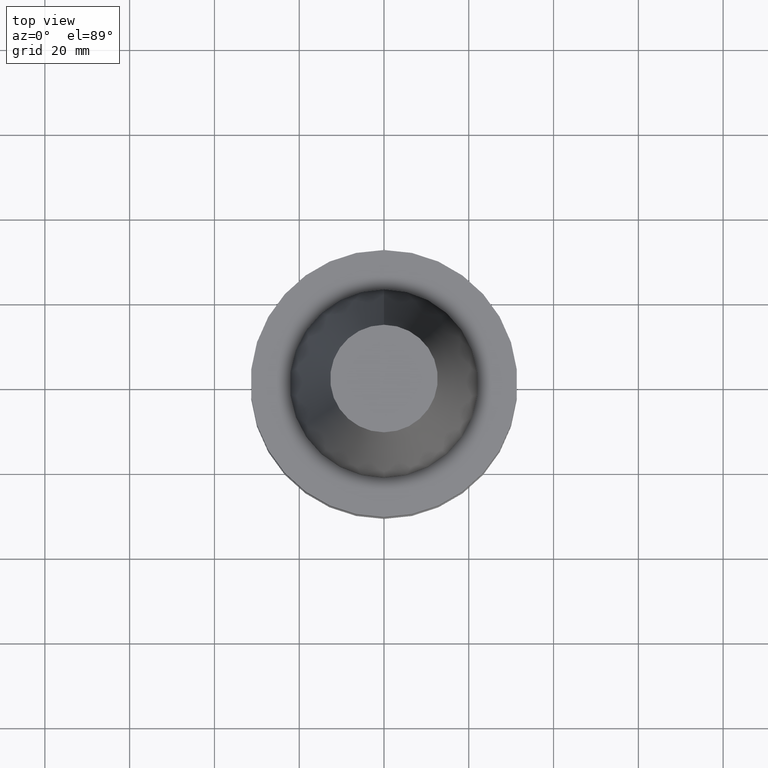
[diagram: clean part render]
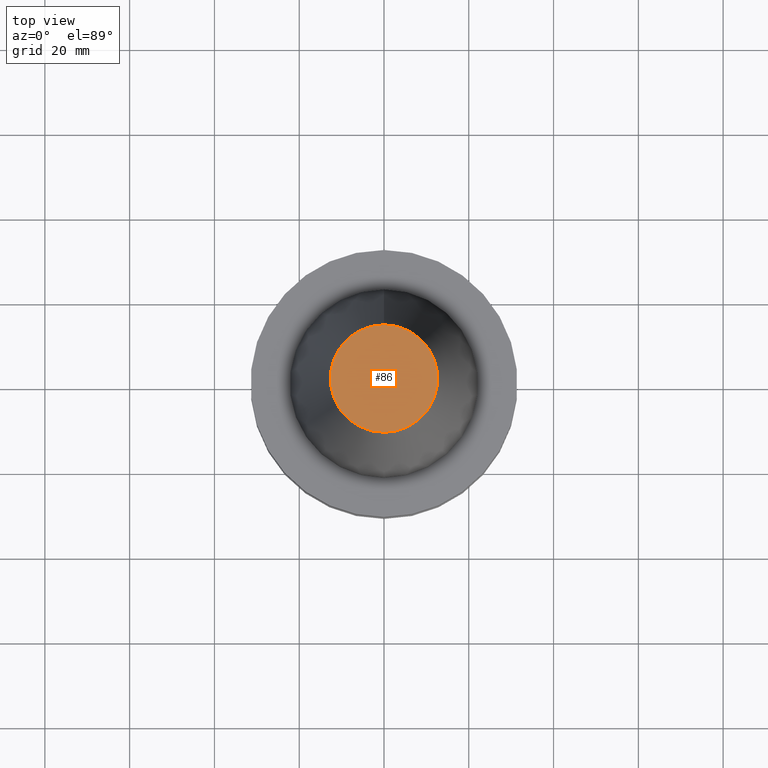
[diagram: same view with one face highlighted and labeled with its STEP entity id]
A machine part, top view. The second image highlights one B-rep face of the part: STEP entity #86.
In plain terms, the highlighted planar face has unit normal (-0, -0, 1).
Its self-contained STEP definition (entity closure, byte-faithful):
#86=ADVANCED_FACE('',(#122),#123,.T.);
#122=FACE_OUTER_BOUND('',#162,.T.);
#123=PLANE('',#163);
#162=EDGE_LOOP('',(#224));
#163=AXIS2_PLACEMENT_3D('',#225,#226,#227);
#224=ORIENTED_EDGE('',*,*,#249,.T.);
#225=CARTESIAN_POINT('',(-4.00459503321185E-015,6.34375044925611,65.4));
#226=DIRECTION('',(-6.12323399573677E-017,-1.22464679914735E-016,1.0));
#227=DIRECTION('',(-1.23259516440783E-032,1.0,1.22464679914735E-016));
#249=EDGE_CURVE('',#273,#273,#274,.T.);
#273=VERTEX_POINT('',#299);
#274=CIRCLE('',#300,12.6875008985122);
#299=CARTESIAN_POINT('',(-4.00459503321185E-015,12.6875008985122,65.4));
#300=AXIS2_PLACEMENT_3D('',#336,#337,#338);
#336=CARTESIAN_POINT('',(-4.00459503321185E-015,-8.00919006642369E-015,65.4));
#337=DIRECTION('',(-6.12323399573677E-017,-1.22464679914735E-016,1.0));
#338=DIRECTION('',(-1.23259516440783E-032,1.0,1.22464679914735E-016));